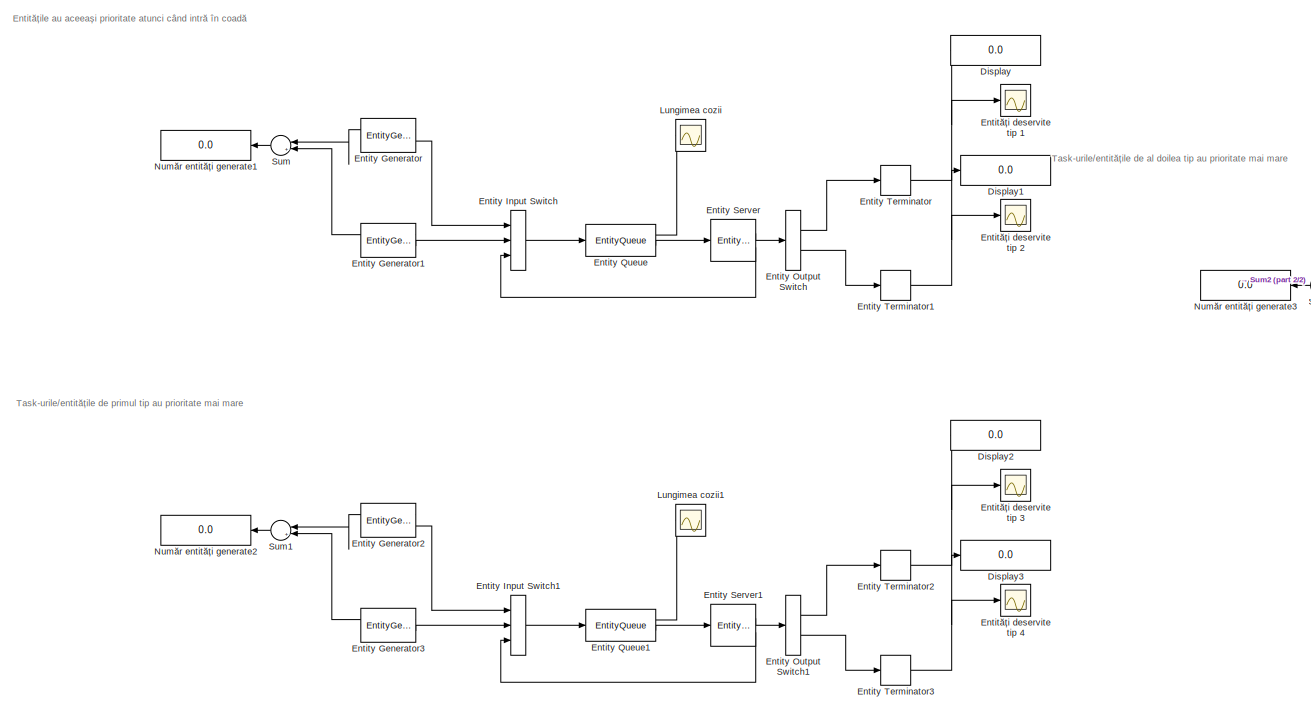
[diagram: root canvas - part 1/2, left side, full height]
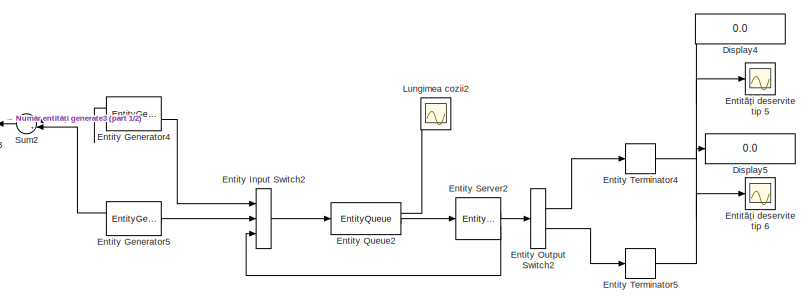
[diagram: root canvas - part 2/2, middle right region]
MODEL slx_bde21834cc4b
KIND model
CONFIG AbsTol = auto
CONFIG FixedStep = auto
CONFIG MaxStep = auto
CONFIG MinStep = auto
CONFIG RelTol = 1e-3
CONFIG SampleTimeConstraint = Unconstrained
CONFIG Solver = VariableStepDiscrete
CONFIG SolverMode = Auto
CONFIG SolverName = VariableStepDiscrete
CONFIG StartTime = 0.0
CONFIG StopTime = 50
BLOCK [Display] Display
  Decimation = 1
  Ports = [1]
BLOCK [Display] Display1
  Decimation = 1
  Ports = [1]
BLOCK [Display] Display2
  Decimation = 1
  Ports = [1]
BLOCK [Display] Display3
  Decimation = 1
  Ports = [1]
BLOCK [Display] Display4
  Decimation = 1
  Ports = [1]
BLOCK [Display] Display5
  Decimation = 1
  Ports = [1]
BLOCK [EntityGenerator] Entity Generator
  AttributeInitialValue = 1|1|1
  AttributeName = ServiceTime|Type|Priority
  EntityType = Structured
  EntityTypeName = Entity
  NumberEntitiesDeparted = on
  OutputPortMap = o0,o3
  OutputPortMessageModes = n,m
  Period = 2
  Ports = [0, 2]
BLOCK [EntityGenerator] Entity Generator1
  AttributeInitialValue = 2.5|2|1
  AttributeName = ServiceTime|Type|Priority
  EntityType = Structured
  EntityTypeName = Entity
  NumberEntitiesDeparted = on
  OutputPortMap = o0,o3
  OutputPortMessageModes = n,m
  Period = 5
  Ports = [0, 2]
BLOCK [EntityGenerator] Entity Generator2
  AttributeInitialValue = 1|1|1
  AttributeName = ServiceTime|Type|Priority
  EntityType = Structured
  EntityTypeName = Entity
  NumberEntitiesDeparted = on
  OutputPortMap = o0,o3
  OutputPortMessageModes = n,m
  Period = 2
  Ports = [0, 2]
BLOCK [EntityGenerator] Entity Generator3
  AttributeInitialValue = 2.5|2|2
  AttributeName = ServiceTime|Type|Priority
  EntityType = Structured
  EntityTypeName = Entity
  NumberEntitiesDeparted = on
  OutputPortMap = o0,o3
  OutputPortMessageModes = n,m
  Period = 5
  Ports = [0, 2]
BLOCK [EntityGenerator] Entity Generator4
  AttributeInitialValue = 1|1|2
  AttributeName = ServiceTime|Type|Priority
  EntityType = Structured
  EntityTypeName = Entity
  NumberEntitiesDeparted = on
  OutputPortMap = o0,o3
  OutputPortMessageModes = n,m
  Period = 2
  Ports = [0, 2]
BLOCK [EntityGenerator] Entity Generator5
  AttributeInitialValue = 2.5|2|1
  AttributeName = ServiceTime|Type|Priority
  EntityType = Structured
  EntityTypeName = Entity
  NumberEntitiesDeparted = on
  OutputPortMap = o0,o3
  OutputPortMessageModes = n,m
  Period = 5
  Ports = [0, 2]
BLOCK [EntityInputSwitch] Entity Input Switch
  InputPortMap = u1,u2,u3
  InputPortMessageModes = m,m,m
  NumberInputPorts = 3
  OutputPortMap = o0
  OutputPortMessageModes = m
  Ports = [3, 1]
BLOCK [EntityInputSwitch] Entity Input Switch1
  InputPortMap = u1,u2,u3
  InputPortMessageModes = m,m,m
  NumberInputPorts = 3
  OutputPortMap = o0
  OutputPortMessageModes = m
  Ports = [3, 1]
BLOCK [EntityInputSwitch] Entity Input Switch2
  InputPortMap = u1,u2,u3
  InputPortMessageModes = m,m,m
  NumberInputPorts = 3
  OutputPortMap = o0
  OutputPortMessageModes = m
  Ports = [3, 1]
BLOCK [EntityOutputSwitch] Entity Output Switch
  InputPortMap = u1
  InputPortMessageModes = m
  OutputPortMap = o0,o1
  OutputPortMessageModes = m,m
  Ports = [1, 2]
  SwitchAttributeName = Type
  SwitchingCriterion = From attribute
BLOCK [EntityOutputSwitch] Entity Output Switch1
  InputPortMap = u1
  InputPortMessageModes = m
  OutputPortMap = o0,o1
  OutputPortMessageModes = m,m
  Ports = [1, 2]
  SwitchAttributeName = Type
  SwitchingCriterion = From attribute
BLOCK [EntityOutputSwitch] Entity Output Switch2
  InputPortMap = u1
  InputPortMessageModes = m
  OutputPortMap = o0,o1
  OutputPortMessageModes = m,m
  Ports = [1, 2]
  SwitchAttributeName = Type
  SwitchingCriterion = From attribute
BLOCK [EntityQueue] Entity Queue
  AverageQueueLength = on
  InputPortMap = u0
  InputPortMessageModes = m
  OutputPortMap = o3,o5
  OutputPortMessageModes = n,m
  Ports = [1, 2]
  PrioritySource = Priority
  QueueType = Priority
BLOCK [EntityQueue] Entity Queue1
  AverageQueueLength = on
  InputPortMap = u0
  InputPortMessageModes = m
  OutputPortMap = o3,o5
  OutputPortMessageModes = n,m
  Ports = [1, 2]
  PrioritySource = Priority
  QueueType = Priority
BLOCK [EntityQueue] Entity Queue2
  AverageQueueLength = on
  InputPortMap = u0
  InputPortMessageModes = m
  OutputPortMap = o3,o5
  OutputPortMessageModes = n,m
  Ports = [1, 2]
  PrioritySource = Priority
  QueueType = Priority
BLOCK [EntityServer] Entity Server
  Capacity = 1
  InputPortMap = u2
  InputPortMessageModes = m
  OutputPortMap = o9,o10
  OutputPortMessageModes = m,m
  PermitPreemptionBasedOnAttribute = on
  Ports = [1, 2]
  ResidualTimeAttributeName = ServiceTime
  ServiceTimeSource = Attribute
  SortingAttributeName = Priority
  SortingDirection = Descending
  WriteResidualTimeToAttribute = on
BLOCK [EntityServer] Entity Server1
  Capacity = 1
  InputPortMap = u2
  InputPortMessageModes = m
  OutputPortMap = o9,o10
  OutputPortMessageModes = m,m
  PermitPreemptionBasedOnAttribute = on
  Ports = [1, 2]
  ResidualTimeAttributeName = ServiceTime
  ServiceTimeSource = Attribute
  SortingAttributeName = Priority
  SortingDirection = Descending
  WriteResidualTimeToAttribute = on
BLOCK [EntityServer] Entity Server2
  Capacity = 1
  InputPortMap = u2
  InputPortMessageModes = m
  OutputPortMap = o9,o10
  OutputPortMessageModes = m,m
  PermitPreemptionBasedOnAttribute = on
  Ports = [1, 2]
  ResidualTimeAttributeName = ServiceTime
  ServiceTimeSource = Attribute
  SortingAttributeName = Priority
  SortingDirection = Descending
  WriteResidualTimeToAttribute = on
BLOCK [EntityTerminator] Entity Terminator
  InputPortMap = u0
  InputPortMessageModes = m
  NumberEntitiesArrived = on
  OutputPortMap = o0
  Ports = [1, 1]
BLOCK [EntityTerminator] Entity Terminator1
  InputPortMap = u0
  InputPortMessageModes = m
  NumberEntitiesArrived = on
  OutputPortMap = o0
  Ports = [1, 1]
BLOCK [EntityTerminator] Entity Terminator2
  InputPortMap = u0
  InputPortMessageModes = m
  NumberEntitiesArrived = on
  OutputPortMap = o0
  Ports = [1, 1]
BLOCK [EntityTerminator] Entity Terminator3
  InputPortMap = u0
  InputPortMessageModes = m
  NumberEntitiesArrived = on
  OutputPortMap = o0
  Ports = [1, 1]
BLOCK [EntityTerminator] Entity Terminator4
  InputPortMap = u0
  InputPortMessageModes = m
  NumberEntitiesArrived = on
  OutputPortMap = o0
  Ports = [1, 1]
BLOCK [EntityTerminator] Entity Terminator5
  InputPortMap = u0
  InputPortMessageModes = m
  NumberEntitiesArrived = on
  OutputPortMap = o0
  Ports = [1, 1]
BLOCK [Scope] Entități deservite tip 1
  Ports = [1]
  ScopeSpecificationString = Simulink.scopes.TimeScopeBlockCfg('CurrentConfiguration', extmgr.ConfigurationSet(extmgr.Configuration('Core','General UI',true),extmgr.Configuration('Core','Source UI',true),extmgr.Configuration('Sources','WiredSimulink',true,'DataLoggingVariableName','ScopeData4'),extmgr.Configuration('Visuals','Time Domain',true,'SerializedDisplays',{struct('MinYLimReal','-2.00000','MaxYLimReal','28.00000','YLa...<+1380ch>
BLOCK [Scope] Entități deservite tip 2
  Ports = [1]
  ScopeSpecificationString = Simulink.scopes.TimeScopeBlockCfg('CurrentConfiguration', extmgr.ConfigurationSet(extmgr.Configuration('Core','General UI',true),extmgr.Configuration('Core','Source UI',true),extmgr.Configuration('Sources','WiredSimulink',true),extmgr.Configuration('Visuals','Time Domain',true,'SerializedDisplays',{struct('MinYLimReal','-0.125','MaxYLimReal','11.125','YLabelReal','','MinYLimMag','0.00000','MaxYLim...<+1367ch>
BLOCK [Scope] Entități deservite tip 3
  Ports = [1]
  ScopeSpecificationString = Simulink.scopes.TimeScopeBlockCfg('CurrentConfiguration', extmgr.ConfigurationSet(extmgr.Configuration('Core','General UI',true),extmgr.Configuration('Core','Source UI',true),extmgr.Configuration('Sources','WiredSimulink',true,'DataLoggingVariableName','ScopeData1'),extmgr.Configuration('Visuals','Time Domain',true,'SerializedDisplays',{struct('MinYLimReal','-2.00000','MaxYLimReal','28.00000','YLa...<+1380ch>
BLOCK [Scope] Entități deservite tip 4
  Ports = [1]
  ScopeSpecificationString = Simulink.scopes.TimeScopeBlockCfg('CurrentConfiguration', extmgr.ConfigurationSet(extmgr.Configuration('Core','General UI',true),extmgr.Configuration('Core','Source UI',true),extmgr.Configuration('Sources','WiredSimulink',true,'DataLoggingVariableName','ScopeData2'),extmgr.Configuration('Visuals','Time Domain',true,'SerializedDisplays',{struct('MinYLimReal','-0.125','MaxYLimReal','11.125','YLabelR...<+1406ch>
BLOCK [Scope] Entități deservite tip 5
  Ports = [1]
  ScopeSpecificationString = Simulink.scopes.TimeScopeBlockCfg('CurrentConfiguration', extmgr.ConfigurationSet(extmgr.Configuration('Core','General UI',true),extmgr.Configuration('Core','Source UI',true),extmgr.Configuration('Sources','WiredSimulink',true,'DataLoggingVariableName','ScopeData6'),extmgr.Configuration('Visuals','Time Domain',true,'SerializedDisplays',{struct('MinYLimReal','-2.00000','MaxYLimReal','28.00000','YLa...<+1380ch>
BLOCK [Scope] Entități deservite tip 6
  Ports = [1]
  ScopeSpecificationString = Simulink.scopes.TimeScopeBlockCfg('CurrentConfiguration', extmgr.ConfigurationSet(extmgr.Configuration('Core','General UI',true),extmgr.Configuration('Core','Source UI',true),extmgr.Configuration('Sources','WiredSimulink',true,'DataLoggingVariableName','ScopeData7'),extmgr.Configuration('Visuals','Time Domain',true,'SerializedDisplays',{struct('MinYLimReal','-0.125','MaxYLimReal','11.125','YLabelR...<+1406ch>
BLOCK [Scope] Lungimea cozii
  Ports = [1]
  ScopeSpecificationString = Simulink.scopes.TimeScopeBlockCfg('CurrentConfiguration', extmgr.ConfigurationSet(extmgr.Configuration('Core','General UI',true),extmgr.Configuration('Core','Source UI',true),extmgr.Configuration('Sources','WiredSimulink',true,'DataLoggingVariableName','ScopeData3'),extmgr.Configuration('Visuals','Time Domain',true,'SerializedDisplays',{struct('MinYLimReal','-0.125','MaxYLimReal','1.125','YLabelRe...<+1390ch>
BLOCK [Scope] Lungimea cozii1
  Ports = [1]
  ScopeSpecificationString = Simulink.scopes.TimeScopeBlockCfg('CurrentConfiguration', extmgr.ConfigurationSet(extmgr.Configuration('Core','General UI',true),extmgr.Configuration('Core','Source UI',true),extmgr.Configuration('Sources','WiredSimulink',true,'DataLoggingVariableName','ScopeData5'),extmgr.Configuration('Visuals','Time Domain',true,'SerializedDisplays',{struct('MinYLimReal','-0.125','MaxYLimReal','1.125','YLabelRe...<+1390ch>
BLOCK [Scope] Lungimea cozii2
  Ports = [1]
  ScopeSpecificationString = Simulink.scopes.TimeScopeBlockCfg('CurrentConfiguration', extmgr.ConfigurationSet(extmgr.Configuration('Core','General UI',true),extmgr.Configuration('Core','Source UI',true),extmgr.Configuration('Sources','WiredSimulink',true,'DataLoggingVariableName','ScopeData8'),extmgr.Configuration('Visuals','Time Domain',true,'SerializedDisplays',{struct('MinYLimReal','-0.125','MaxYLimReal','1.125','YLabelRe...<+1390ch>
BLOCK [Display] Număr entități generate1
  Decimation = 1
  Ports = [1]
BLOCK [Display] Număr entități generate2
  Decimation = 1
  Ports = [1]
BLOCK [Display] Număr entități generate3
  Decimation = 1
  Ports = [1]
BLOCK [Sum] Sum
  InputSameDT = off
  Inputs = |++
  OutDataTypeStr = Inherit: Inherit via internal rule
  Ports = [2, 1]
  SaturateOnIntegerOverflow = off
BLOCK [Sum] Sum1
  InputSameDT = off
  Inputs = |++
  OutDataTypeStr = Inherit: Inherit via internal rule
  Ports = [2, 1]
  SaturateOnIntegerOverflow = off
BLOCK [Sum] Sum2
  InputSameDT = off
  Inputs = |++
  OutDataTypeStr = Inherit: Inherit via internal rule
  Ports = [2, 1]
  SaturateOnIntegerOverflow = off
ANNOTATION (root): Entitățile au aceeași prioritate atunci când intră în coadă
ANNOTATION (root): Task-urile/entitățile de al doilea tip au prioritate mai mare
ANNOTATION (root): Task-urile/entitățile de primul tip au prioritate mai mare
LINE Entity Generator1:1 -> Sum:2
LINE Entity Generator1:2 -> Entity Input Switch:2
LINE Entity Generator2:1 -> Sum1:1
LINE Entity Generator2:2 -> Entity Input Switch1:1
LINE Entity Generator3:1 -> Sum1:2
LINE Entity Generator3:2 -> Entity Input Switch1:2
LINE Entity Generator4:1 -> Sum2:1
LINE Entity Generator4:2 -> Entity Input Switch2:1
LINE Entity Generator5:1 -> Sum2:2
LINE Entity Generator5:2 -> Entity Input Switch2:2
LINE Entity Generator:1 -> Sum:1
LINE Entity Generator:2 -> Entity Input Switch:1
LINE Entity Input Switch1:1 -> Entity Queue1:1
LINE Entity Input Switch2:1 -> Entity Queue2:1
LINE Entity Input Switch:1 -> Entity Queue:1
LINE Entity Output Switch1:1 -> Entity Terminator2:1
LINE Entity Output Switch1:2 -> Entity Terminator3:1
LINE Entity Output Switch2:1 -> Entity Terminator4:1
LINE Entity Output Switch2:2 -> Entity Terminator5:1
LINE Entity Output Switch:1 -> Entity Terminator:1
LINE Entity Output Switch:2 -> Entity Terminator1:1
LINE Entity Queue1:1 -> Lungimea cozii1:1
LINE Entity Queue1:2 -> Entity Server1:1
LINE Entity Queue2:1 -> Lungimea cozii2:1
LINE Entity Queue2:2 -> Entity Server2:1
LINE Entity Queue:1 -> Lungimea cozii:1
LINE Entity Queue:2 -> Entity Server:1
LINE Entity Server1:1 -> Entity Output Switch1:1
LINE Entity Server1:2 -> Entity Input Switch1:3
LINE Entity Server2:1 -> Entity Output Switch2:1
LINE Entity Server2:2 -> Entity Input Switch2:3
LINE Entity Server:1 -> Entity Output Switch:1
LINE Entity Server:2 -> Entity Input Switch:3
NET Entity Terminator1:1 -> Display1:1, Entități deservite tip 2:1
NET Entity Terminator2:1 -> Display2:1, Entități deservite tip 3:1
NET Entity Terminator3:1 -> Display3:1, Entități deservite tip 4:1
NET Entity Terminator4:1 -> Display4:1, Entități deservite tip 5:1
NET Entity Terminator5:1 -> Display5:1, Entități deservite tip 6:1
NET Entity Terminator:1 -> Display:1, Entități deservite tip 1:1
LINE Sum1:1 -> Număr entități generate2:1
LINE Sum2:1 -> Număr entități generate3:1
LINE Sum:1 -> Număr entități generate1:1
note: NET lines group one-source signal fan-out (src -> all destinations, sorted); 1:1 wires keep LINE
